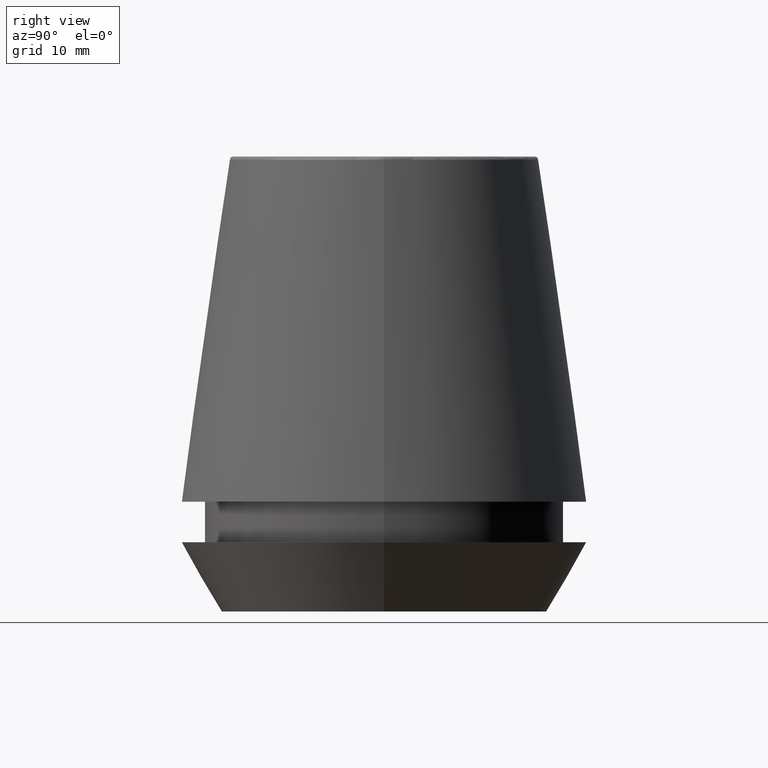
[diagram: clean part render]
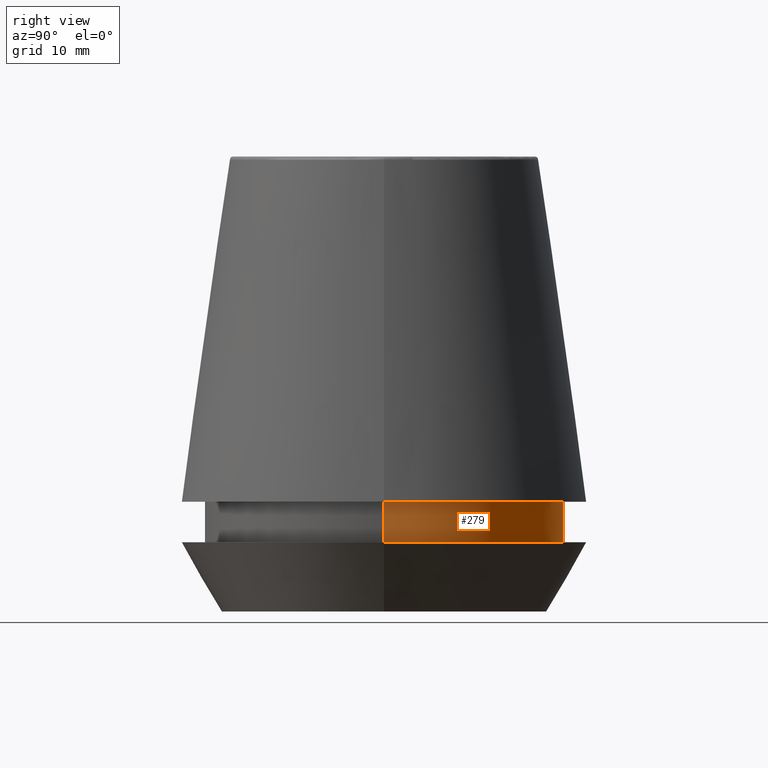
[diagram: same view with one face highlighted and labeled with its STEP entity id]
A machine part, right view. The second image highlights one B-rep face of the part: STEP entity #279.
In plain terms, the highlighted cylindrical surface (partial cylindrical patch) has radius 18.1 mm, axis along (-0, -0, 1).
Its self-contained STEP definition (entity closure, byte-faithful):
#6 = CARTESIAN_POINT ( 'NONE',  ( -18.10000000000000500, 2.216610706456710000E-015, 11.09999999999999800 ) ) ;
#23 = CARTESIAN_POINT ( 'NONE',  ( 0.0000000000000000000, 0.0000000000000000000, 46.00000000000000000 ) ) ;
#24 = AXIS2_PLACEMENT_3D ( 'NONE', #169, #193, #275 ) ;
#36 = ORIENTED_EDGE ( 'NONE', *, *, #108, .F. ) ;
#51 = VERTEX_POINT ( 'NONE', #6 ) ;
#85 = DIRECTION ( 'NONE',  ( -0.0000000000000000000, -0.0000000000000000000, 1.000000000000000000 ) ) ;
#89 = CARTESIAN_POINT ( 'NONE',  ( 18.10000000000000100, 0.0000000000000000000, 6.999999999999999100 ) ) ;
#101 = LINE ( 'NONE', #285, #284 ) ;
#108 = EDGE_CURVE ( 'NONE', #176, #175, #101, .T. ) ;
#130 = CYLINDRICAL_SURFACE ( 'NONE', #242, 18.10000000000000500 ) ;
#141 = EDGE_CURVE ( 'NONE', #202, #51, #187, .T. ) ;
#169 = CARTESIAN_POINT ( 'NONE',  ( 0.0000000000000000000, 0.0000000000000000000, 11.09999999999999800 ) ) ;
#171 = CARTESIAN_POINT ( 'NONE',  ( 0.0000000000000000000, 0.0000000000000000000, 6.999999999999999100 ) ) ;
#175 = VERTEX_POINT ( 'NONE', #335 ) ;
#176 = VERTEX_POINT ( 'NONE', #89 ) ;
#183 = EDGE_LOOP ( 'NONE', ( #294, #368, #259, #36 ) ) ;
#187 = LINE ( 'NONE', #365, #218 ) ;
#193 = DIRECTION ( 'NONE',  ( -0.0000000000000000000, -0.0000000000000000000, 1.000000000000000000 ) ) ;
#202 = VERTEX_POINT ( 'NONE', #331 ) ;
#208 = DIRECTION ( 'NONE',  ( -0.0000000000000000000, -0.0000000000000000000, 1.000000000000000000 ) ) ;
#210 = FACE_OUTER_BOUND ( 'NONE', #183, .T. ) ;
#218 = VECTOR ( 'NONE', #283, 1000.000000000000000 ) ;
#220 = EDGE_CURVE ( 'NONE', #176, #202, #224, .T. ) ;
#224 = CIRCLE ( 'NONE', #373, 18.10000000000000100 ) ;
#229 = DIRECTION ( 'NONE',  ( -0.0000000000000000000, -0.0000000000000000000, 1.000000000000000000 ) ) ;
#242 = AXIS2_PLACEMENT_3D ( 'NONE', #23, #85, #326 ) ;
#259 = ORIENTED_EDGE ( 'NONE', *, *, #278, .F. ) ;
#268 = DIRECTION ( 'NONE',  ( 1.000000000000000000, 0.0000000000000000000, 0.0000000000000000000 ) ) ;
#275 = DIRECTION ( 'NONE',  ( 1.000000000000000000, 0.0000000000000000000, 0.0000000000000000000 ) ) ;
#278 = EDGE_CURVE ( 'NONE', #175, #51, #382, .T. ) ;
#279 = ADVANCED_FACE ( 'NONE', ( #210 ), #130, .T. ) ;
#283 = DIRECTION ( 'NONE',  ( -0.0000000000000000000, -0.0000000000000000000, 1.000000000000000000 ) ) ;
#284 = VECTOR ( 'NONE', #208, 1000.000000000000000 ) ;
#285 = CARTESIAN_POINT ( 'NONE',  ( 18.10000000000000500, 0.0000000000000000000, 46.00000000000000000 ) ) ;
#294 = ORIENTED_EDGE ( 'NONE', *, *, #220, .T. ) ;
#326 = DIRECTION ( 'NONE',  ( 1.000000000000000000, 0.0000000000000000000, 0.0000000000000000000 ) ) ;
#331 = CARTESIAN_POINT ( 'NONE',  ( -18.10000000000000100, 2.216610706456709600E-015, 6.999999999999999100 ) ) ;
#335 = CARTESIAN_POINT ( 'NONE',  ( 18.10000000000000500, 0.0000000000000000000, 11.09999999999999800 ) ) ;
#365 = CARTESIAN_POINT ( 'NONE',  ( -18.10000000000000500, 2.216610706456710000E-015, 46.00000000000000000 ) ) ;
#368 = ORIENTED_EDGE ( 'NONE', *, *, #141, .T. ) ;
#373 = AXIS2_PLACEMENT_3D ( 'NONE', #171, #229, #268 ) ;
#382 = CIRCLE ( 'NONE', #24, 18.10000000000000500 ) ;